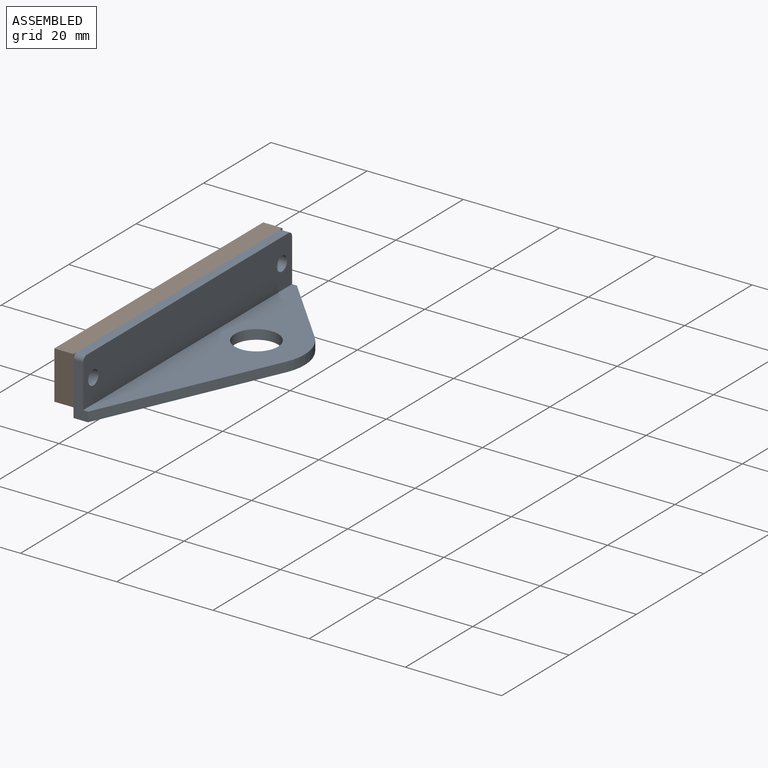
[diagram: assembled view]
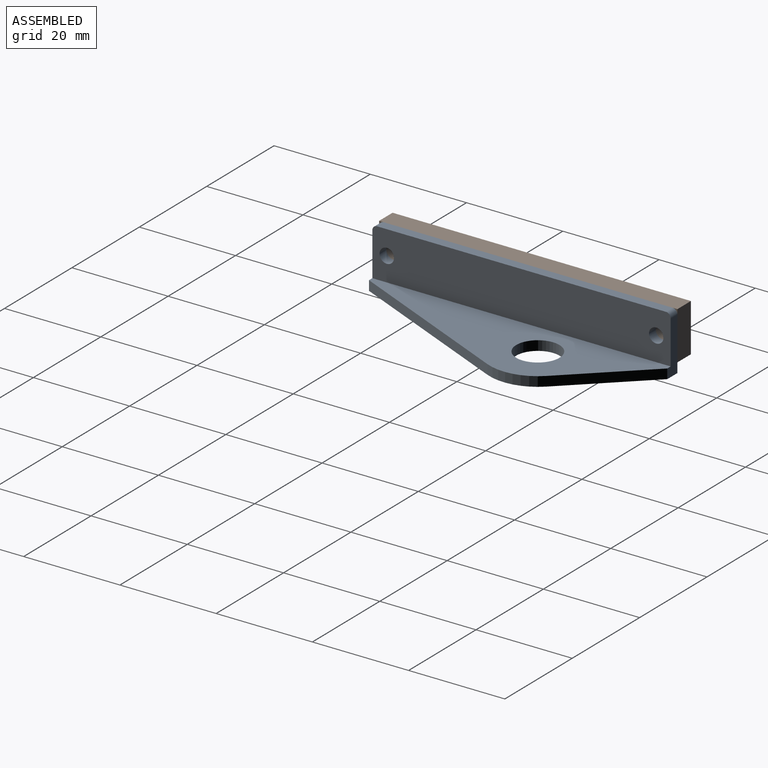
[diagram: assembled view, second angle]
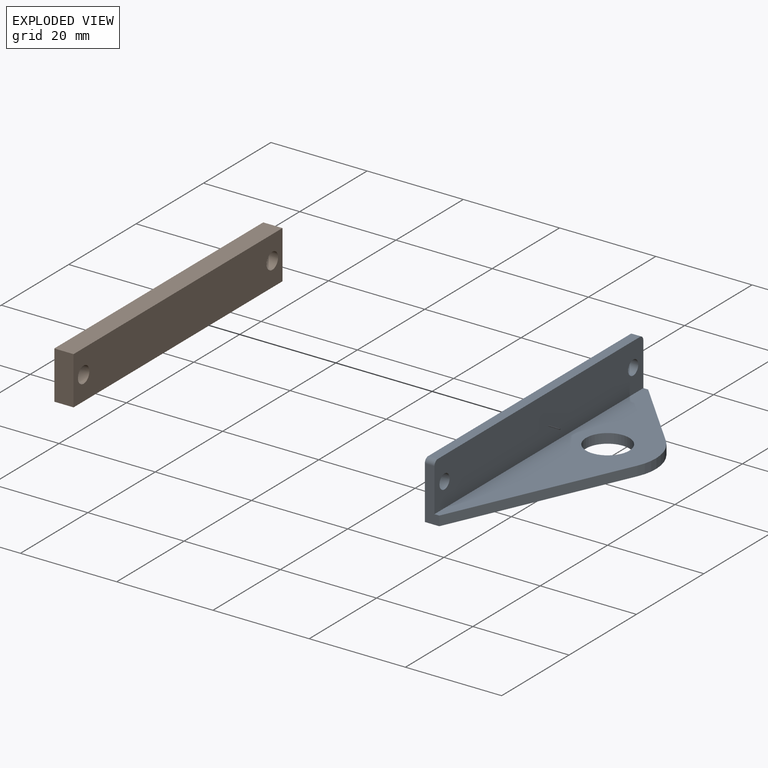
[diagram: exploded view]
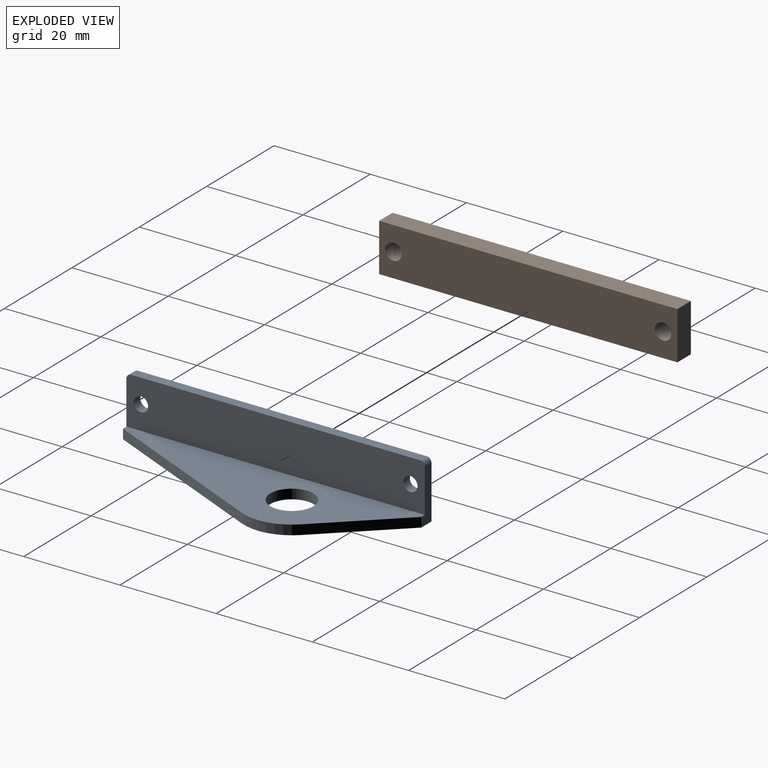
[diagram: exploded view, second angle]
ASSEMBLY  parts=2 mates=2
PART A: 15 faces, bbox 20x62x12 mm
  f0: plane 11x3mm, normal (0,-1,0), area 24mm2, adj f2,f4,f5,f6,f10,f13
  f1: plane 11x3mm, normal (0,1,0), area 24mm2, adj f2,f4,f5,f6,f9,f12
  f2: plane 62x18mm, normal (0,0,1), area 575.1mm2, adj f0,f1,f6,f11,f12,f13,f14
  f3: plane 60x2mm, normal (0,0,1), area 120mm2, adj f4,f6,f9,f10
  f4: plane 62x12mm, normal (-1,0,0), area 729.4mm2, adj f0,f1,f3,f5,f7,f8,f9,f10
  f5: plane 62x20mm, normal (0,0,-1), area 699.1mm2, adj f0,f1,f4,f11,f12,f13,f14
  f6: plane 62x10mm, normal (1,0,0), area 605.4mm2, adj f0,f1,f2,f3,f7,f8,f9,f10
  f7: cylinder r=1.5mm len=3mm, axis (-1,0,0), area 18.8mm2, adj f4,f6
  f8: cylinder r=1.5mm len=3mm, axis (-1,0,0), area 18.8mm2, adj f4,f6
  f9: cylinder r=1mm len=2mm, axis (-1,0,0), area 3.1mm2, adj f1,f3,f4,f6
  f10: cylinder r=1mm len=2mm, axis (1,0,0), area 3.1mm2, adj f0,f3,f4,f6
  f11: cylinder r=4.5mm len=9mm, axis (0,0,1), area 56.5mm2, adj f2,f5
  f12: plane 15.14x14.28mm, normal (0.73,0.69,0), area 41.6mm2, adj f1,f2,f5,f14
  f13: plane 35.9x16.12mm, normal (0.91,-0.41,0), area 78.7mm2, adj f0,f2,f5,f14
  f14: cylinder r=10mm len=10.96mm, axis (0,0,1), area 23.6mm2, adj f2,f5,f12,f13
PART B: 8 faces, bbox 4x62x10 mm
  f0: plane 62x4mm, normal (0,0,-1), area 248mm2, adj f1,f5,f6,f7
  f1: plane 10x4mm, normal (0,1,0), area 40mm2, adj f0,f2,f6,f7
  f2: plane 62x4mm, normal (0,0,1), area 248mm2, adj f1,f5,f6,f7
  f3: cylinder r=1.7mm len=4mm, axis (-1,0,0), area 42.7mm2, adj f6,f7
  f4: cylinder r=1.7mm len=4mm, axis (-1,0,0), area 42.7mm2, adj f6,f7
  f5: plane 10x4mm, normal (0,-1,0), area 40mm2, adj f0,f2,f6,f7
  f6: plane 62x10mm, normal (1,0,0), area 601.8mm2, adj f0,f1,f2,f3,f4,f5
  f7: plane 62x10mm, normal (-1,0,0), area 601.8mm2, adj f0,f1,f2,f3,f4,f5
PLACE A t=(-22.59,-0.97,11.81)mm
PLACE B t=(-24.59,-0.97,18.81)mm
MATE fastened B.f4 <-> A.f8  axis (-1,0,0) through (-22.59,27.03,18.81)mm
MATE fastened B.f3 <-> A.f7  axis (1,0,0) through (-22.59,-28.97,18.81)mm
